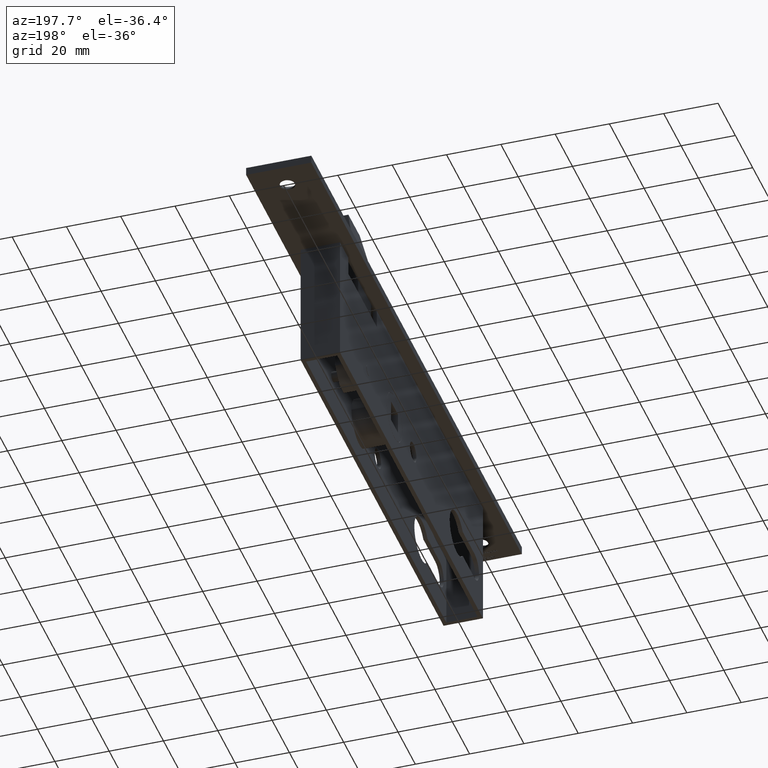
[diagram: clean part render]
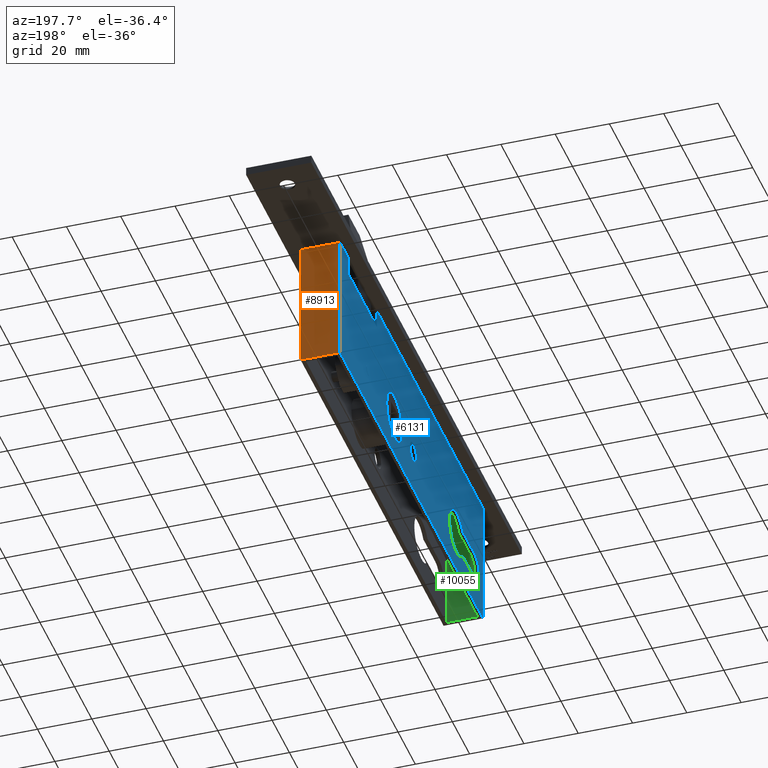
[diagram: same view with three faces highlighted in distinct colors, each labeled with its STEP entity id]
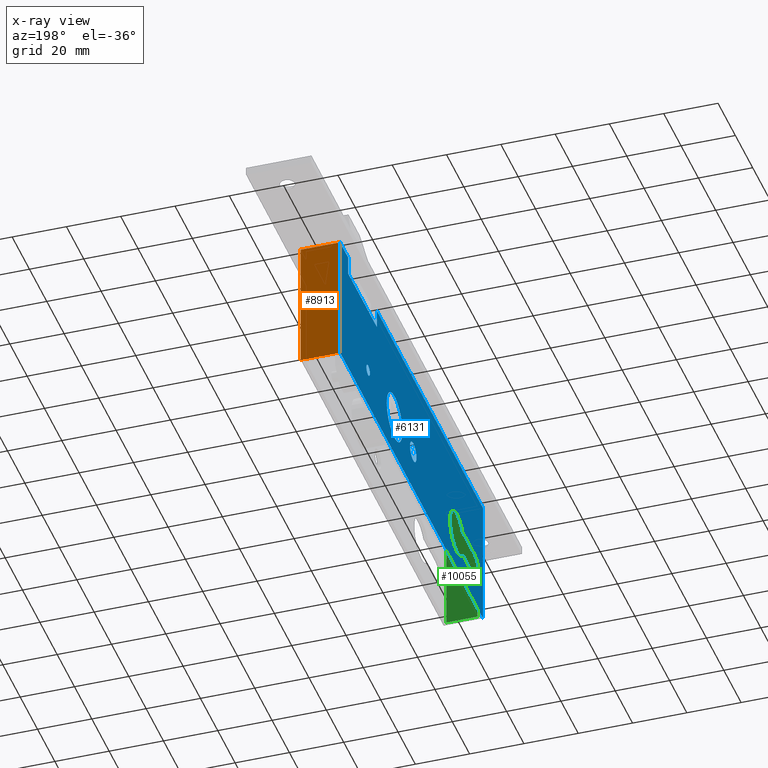
[diagram: x-ray of the same camera — body ghosted, the three highlighted faces saturated]
A machine part, auxiliary view with three faces highlighted in distinct colors.
The next image is the same camera in x-ray (body ghosted, the three faces saturated) — at least one of them is partly hidden behind the body in this view.
Their STEP definitions:

[orange] entity #8913 — the highlighted planar face has unit normal (0, -1, -0).
#209 = VECTOR ( 'NONE', #1327, 1000.000000000000000 ) ;
#993 = ORIENTED_EDGE ( 'NONE', *, *, #1352, .T. ) ;
#1008 = CARTESIAN_POINT ( 'NONE',  ( -7.249999999999977796, 195.0000000000000000, -48.00000000000000000 ) ) ;
#1106 = CARTESIAN_POINT ( 'NONE',  ( 7.249999999999977796, 195.0000000000000000, -48.00000000000000000 ) ) ;
#1327 = DIRECTION ( 'NONE',  ( 1.000000000000000000, -0.000000000000000000, -0.000000000000000000 ) ) ;
#1352 = EDGE_CURVE ( 'NONE', #2633, #5066, #12684, .T. ) ;
#1533 = PLANE ( 'NONE',  #6134 ) ;
#2045 = VECTOR ( 'NONE', #4720, 1000.000000000000000 ) ;
#2421 = DIRECTION ( 'NONE',  ( 0.000000000000000000, -1.000000000000000000, -0.000000000000000000 ) ) ;
#2492 = CARTESIAN_POINT ( 'NONE',  ( 7.249999999999977796, 195.0000000000000000, 0.000000000000000000 ) ) ;
#2633 = VERTEX_POINT ( 'NONE', #1008 ) ;
#2656 = CARTESIAN_POINT ( 'NONE',  ( 7.249999999999977796, 195.0000000000000000, -48.00000000000000000 ) ) ;
#2745 = VERTEX_POINT ( 'NONE', #2492 ) ;
#3088 = VECTOR ( 'NONE', #7062, 1000.000000000000000 ) ;
#3378 = EDGE_CURVE ( 'NONE', #12129, #2745, #8936, .T. ) ;
#4008 = EDGE_LOOP ( 'NONE', ( #9693, #10794, #6084, #993 ) ) ;
#4720 = DIRECTION ( 'NONE',  ( -0.000000000000000000, -0.000000000000000000, 1.000000000000000000 ) ) ;
#5066 = VERTEX_POINT ( 'NONE', #6665 ) ;
#5461 = CARTESIAN_POINT ( 'NONE',  ( 7.249999999999977796, 195.0000000000000000, -48.00000000000000000 ) ) ;
#5710 = CARTESIAN_POINT ( 'NONE',  ( -7.249999999999977796, 195.0000000000000000, -48.00000000000000000 ) ) ;
#6084 = ORIENTED_EDGE ( 'NONE', *, *, #11034, .F. ) ;
#6134 = AXIS2_PLACEMENT_3D ( 'NONE', #8393, #2421, #8352 ) ;
#6458 = CARTESIAN_POINT ( 'NONE',  ( 7.249999999999977796, 195.0000000000000000, 0.000000000000000000 ) ) ;
#6665 = CARTESIAN_POINT ( 'NONE',  ( -7.249999999999977796, 195.0000000000000000, 0.000000000000000000 ) ) ;
#7062 = DIRECTION ( 'NONE',  ( -0.000000000000000000, -0.000000000000000000, 1.000000000000000000 ) ) ;
#8352 = DIRECTION ( 'NONE',  ( 0.000000000000000000, 0.000000000000000000, -1.000000000000000000 ) ) ;
#8393 = CARTESIAN_POINT ( 'NONE',  ( 7.249999999999977796, 195.0000000000000000, -48.00000000000000000 ) ) ;
#8843 = VECTOR ( 'NONE', #11400, 1000.000000000000000 ) ;
#8913 = ADVANCED_FACE ( 'NONE', ( #12414 ), #1533, .F. ) ;
#8936 = LINE ( 'NONE', #1106, #3088 ) ;
#9693 = ORIENTED_EDGE ( 'NONE', *, *, #10229, .T. ) ;
#10229 = EDGE_CURVE ( 'NONE', #5066, #2745, #11326, .T. ) ;
#10794 = ORIENTED_EDGE ( 'NONE', *, *, #3378, .F. ) ;
#10839 = LINE ( 'NONE', #5461, #8843 ) ;
#11034 = EDGE_CURVE ( 'NONE', #2633, #12129, #10839, .T. ) ;
#11326 = LINE ( 'NONE', #6458, #209 ) ;
#11400 = DIRECTION ( 'NONE',  ( 1.000000000000000000, -0.000000000000000000, -0.000000000000000000 ) ) ;
#12129 = VERTEX_POINT ( 'NONE', #2656 ) ;
#12414 = FACE_OUTER_BOUND ( 'NONE', #4008, .T. ) ;
#12684 = LINE ( 'NONE', #5710, #2045 ) ;

[blue] entity #6131 — the highlighted planar face has unit normal (1, -0, 0).
#44 = AXIS2_PLACEMENT_3D ( 'NONE', #3935, #6949, #1074 ) ;
#64 = AXIS2_PLACEMENT_3D ( 'NONE', #8607, #4567, #9596 ) ;
#204 = EDGE_CURVE ( 'NONE', #6002, #9366, #8991, .T. ) ;
#246 = CARTESIAN_POINT ( 'NONE',  ( -7.249999999999977796, 195.0000000000000000, -37.25000000000000711 ) ) ;
#266 = CARTESIAN_POINT ( 'NONE',  ( -7.249999999999977796, 195.0000000000000000, -48.00000000000000000 ) ) ;
#325 = VERTEX_POINT ( 'NONE', #6034 ) ;
#374 = VECTOR ( 'NONE', #3079, 1000.000000000000000 ) ;
#461 = LINE ( 'NONE', #10387, #1095 ) ;
#644 = DIRECTION ( 'NONE',  ( 2.344220913482175107E-16, 1.000000000000000000, 0.000000000000000000 ) ) ;
#757 = ORIENTED_EDGE ( 'NONE', *, *, #12585, .T. ) ;
#913 = CIRCLE ( 'NONE', #4629, 8.499999999999992895 ) ;
#984 = EDGE_CURVE ( 'NONE', #3305, #9804, #11756, .T. ) ;
#1002 = ORIENTED_EDGE ( 'NONE', *, *, #6358, .T. ) ;
#1008 = CARTESIAN_POINT ( 'NONE',  ( -7.249999999999977796, 195.0000000000000000, -48.00000000000000000 ) ) ;
#1031 = ORIENTED_EDGE ( 'NONE', *, *, #1352, .F. ) ;
#1074 = DIRECTION ( 'NONE',  ( 1.652117596168386277E-16, 1.000000000000000000, 0.000000000000000000 ) ) ;
#1095 = VECTOR ( 'NONE', #5574, 1000.000000000000000 ) ;
#1211 = VERTEX_POINT ( 'NONE', #8776 ) ;
#1244 = LINE ( 'NONE', #1548, #11411 ) ;
#1352 = EDGE_CURVE ( 'NONE', #2633, #5066, #12684, .T. ) ;
#1548 = CARTESIAN_POINT ( 'NONE',  ( -7.249999999999977796, 195.0000000000000000, 0.000000000000000000 ) ) ;
#1610 = EDGE_CURVE ( 'NONE', #9804, #6669, #10043, .T. ) ;
#1655 = ORIENTED_EDGE ( 'NONE', *, *, #3767, .T. ) ;
#1658 = EDGE_LOOP ( 'NONE', ( #757, #7565, #6142, #7255 ) ) ;
#1751 = DIRECTION ( 'NONE',  ( 1.419319207617387533E-16, 1.000000000000000000, -0.000000000000000000 ) ) ;
#1975 = DIRECTION ( 'NONE',  ( 1.020425574104004985E-16, 1.000000000000000000, 0.000000000000000000 ) ) ;
#2020 = EDGE_CURVE ( 'NONE', #4118, #1211, #8042, .T. ) ;
#2045 = VECTOR ( 'NONE', #4720, 1000.000000000000000 ) ;
#2089 = VERTEX_POINT ( 'NONE', #5878 ) ;
#2201 = AXIS2_PLACEMENT_3D ( 'NONE', #3121, #6136, #5053 ) ;
#2405 = EDGE_CURVE ( 'NONE', #9366, #8727, #461, .T. ) ;
#2459 = CARTESIAN_POINT ( 'NONE',  ( -7.249999999999998224, 39.75000000000000000, -26.74999999999999645 ) ) ;
#2555 = EDGE_LOOP ( 'NONE', ( #3568 ) ) ;
#2633 = VERTEX_POINT ( 'NONE', #1008 ) ;
#2792 = CARTESIAN_POINT ( 'NONE',  ( -7.250000000000000888, 30.00000000000000355, -48.00000000000000000 ) ) ;
#2875 = LINE ( 'NONE', #246, #374 ) ;
#3079 = DIRECTION ( 'NONE',  ( 1.419319207617387533E-16, 1.000000000000000000, 0.000000000000000000 ) ) ;
#3082 = VECTOR ( 'NONE', #7830, 1000.000000000000000 ) ;
#3121 = CARTESIAN_POINT ( 'NONE',  ( -7.249999999999986677, 132.0000000000000000, -31.99999999999998579 ) ) ;
#3141 = ORIENTED_EDGE ( 'NONE', *, *, #8087, .F. ) ;
#3220 = CARTESIAN_POINT ( 'NONE',  ( -7.249999999999977796, 195.0000000000000000, 0.000000000000000000 ) ) ;
#3277 = DIRECTION ( 'NONE',  ( 1.419319207617387533E-16, 1.000000000000000000, -0.000000000000000000 ) ) ;
#3305 = VERTEX_POINT ( 'NONE', #2792 ) ;
#3308 = VECTOR ( 'NONE', #12410, 1000.000000000000000 ) ;
#3377 = FACE_BOUND ( 'NONE', #7053, .T. ) ;
#3567 = EDGE_CURVE ( 'NONE', #2089, #325, #913, .T. ) ;
#3568 = ORIENTED_EDGE ( 'NONE', *, *, #11137, .T. ) ;
#3621 = PLANE ( 'NONE',  #64 ) ;
#3767 = EDGE_CURVE ( 'NONE', #8727, #5066, #1244, .T. ) ;
#3823 = AXIS2_PLACEMENT_3D ( 'NONE', #7611, #9553, #6623 ) ;
#3935 = CARTESIAN_POINT ( 'NONE',  ( -7.249999999999999112, 39.75000000000000000, -32.00000000000000000 ) ) ;
#3978 = FACE_BOUND ( 'NONE', #2555, .T. ) ;
#4118 = VERTEX_POINT ( 'NONE', #2459 ) ;
#4314 = CIRCLE ( 'NONE', #2201, 9.000000000000007105 ) ;
#4328 = ORIENTED_EDGE ( 'NONE', *, *, #984, .T. ) ;
#4567 = DIRECTION ( 'NONE',  ( 1.000000000000000000, -1.419319207617387533E-16, 0.000000000000000000 ) ) ;
#4629 = AXIS2_PLACEMENT_3D ( 'NONE', #9882, #9796, #1975 ) ;
#4720 = DIRECTION ( 'NONE',  ( -0.000000000000000000, -0.000000000000000000, 1.000000000000000000 ) ) ;
#4833 = EDGE_LOOP ( 'NONE', ( #7325 ) ) ;
#4866 = LINE ( 'NONE', #266, #10554 ) ;
#4921 = CIRCLE ( 'NONE', #3823, 2.000000000000001776 ) ;
#5053 = DIRECTION ( 'NONE',  ( 9.637352644315587847E-17, 1.000000000000000000, 0.000000000000000000 ) ) ;
#5066 = VERTEX_POINT ( 'NONE', #6665 ) ;
#5439 = EDGE_CURVE ( 'NONE', #6669, #6002, #6752, .T. ) ;
#5547 = CARTESIAN_POINT ( 'NONE',  ( -7.249999999999977796, 195.0000000000000000, -26.74999999999999645 ) ) ;
#5560 = DIRECTION ( 'NONE',  ( -0.000000000000000000, -0.000000000000000000, 1.000000000000000000 ) ) ;
#5574 = DIRECTION ( 'NONE',  ( 0.000000000000000000, 0.000000000000000000, 1.000000000000000000 ) ) ;
#5710 = CARTESIAN_POINT ( 'NONE',  ( -7.249999999999977796, 195.0000000000000000, -48.00000000000000000 ) ) ;
#5774 = ORIENTED_EDGE ( 'NONE', *, *, #204, .T. ) ;
#5878 = CARTESIAN_POINT ( 'NONE',  ( -7.249999999999997335, 53.31512902143953170, -37.25000000000000711 ) ) ;
#6002 = VERTEX_POINT ( 'NONE', #6667 ) ;
#6027 = CARTESIAN_POINT ( 'NONE',  ( -7.249999999999984013, 152.5000000000000000, 0.000000000000000000 ) ) ;
#6034 = CARTESIAN_POINT ( 'NONE',  ( -7.249999999999996447, 53.31512902143953170, -26.74999999999999645 ) ) ;
#6131 = ADVANCED_FACE ( 'NONE', ( #3978, #8146, #12469, #3377, #11373 ), #3621, .F. ) ;
#6136 = DIRECTION ( 'NONE',  ( 1.000000000000000000, -1.419319207617387533E-16, 0.000000000000000000 ) ) ;
#6142 = ORIENTED_EDGE ( 'NONE', *, *, #9613, .T. ) ;
#6221 = VECTOR ( 'NONE', #5560, 1000.000000000000000 ) ;
#6358 = EDGE_CURVE ( 'NONE', #9678, #9678, #6889, .T. ) ;
#6407 = CARTESIAN_POINT ( 'NONE',  ( -7.249999999999990230, 110.5000000000000142, -31.99999999999998579 ) ) ;
#6476 = CARTESIAN_POINT ( 'NONE',  ( -7.250000000000000888, 30.00000000000000355, -0.000000000000000000 ) ) ;
#6623 = DIRECTION ( 'NONE',  ( 0.000000000000000000, 1.000000000000000000, 0.000000000000000000 ) ) ;
#6665 = CARTESIAN_POINT ( 'NONE',  ( -7.249999999999977796, 195.0000000000000000, 0.000000000000000000 ) ) ;
#6667 = CARTESIAN_POINT ( 'NONE',  ( -7.250000000000001776, 152.5000000000000000, -7.000000000000004441 ) ) ;
#6669 = VERTEX_POINT ( 'NONE', #6027 ) ;
#6670 = EDGE_LOOP ( 'NONE', ( #10049, #1655, #1031, #3141, #4328, #10956, #11576, #5774 ) ) ;
#6752 = LINE ( 'NONE', #7031, #9986 ) ;
#6763 = CARTESIAN_POINT ( 'NONE',  ( -7.249999999999985789, 141.0000000000000000, -31.99999999999998579 ) ) ;
#6863 = DIRECTION ( 'NONE',  ( 0.000000000000000000, -0.000000000000000000, -1.000000000000000000 ) ) ;
#6889 = CIRCLE ( 'NONE', #11140, 3.699999999999994849 ) ;
#6949 = DIRECTION ( 'NONE',  ( 1.000000000000000000, -1.419319207617387533E-16, 0.000000000000000000 ) ) ;
#7031 = CARTESIAN_POINT ( 'NONE',  ( -7.250000000000001776, 152.5000000000000000, -7.000000000000004441 ) ) ;
#7053 = EDGE_LOOP ( 'NONE', ( #1002 ) ) ;
#7255 = ORIENTED_EDGE ( 'NONE', *, *, #3567, .T. ) ;
#7325 = ORIENTED_EDGE ( 'NONE', *, *, #11859, .T. ) ;
#7565 = ORIENTED_EDGE ( 'NONE', *, *, #2020, .T. ) ;
#7611 = CARTESIAN_POINT ( 'NONE',  ( -7.250000000000001776, 162.5500000000000114, -33.00000000000000000 ) ) ;
#7830 = DIRECTION ( 'NONE',  ( -1.419319207617387533E-16, -1.000000000000000000, 0.000000000000000000 ) ) ;
#8042 = CIRCLE ( 'NONE', #44, 5.250000000000004441 ) ;
#8087 = EDGE_CURVE ( 'NONE', #3305, #2633, #4866, .T. ) ;
#8146 = FACE_BOUND ( 'NONE', #1658, .T. ) ;
#8550 = CARTESIAN_POINT ( 'NONE',  ( -7.250000000000001776, 185.5000000000000000, -7.000000000000000000 ) ) ;
#8607 = CARTESIAN_POINT ( 'NONE',  ( -7.249999999999977796, 195.0000000000000000, -48.00000000000000000 ) ) ;
#8727 = VERTEX_POINT ( 'NONE', #10112 ) ;
#8776 = CARTESIAN_POINT ( 'NONE',  ( -7.249999999999998224, 39.75000000000000000, -37.25000000000000711 ) ) ;
#8991 = LINE ( 'NONE', #11362, #3308 ) ;
#9366 = VERTEX_POINT ( 'NONE', #8550 ) ;
#9542 = VERTEX_POINT ( 'NONE', #11755 ) ;
#9553 = DIRECTION ( 'NONE',  ( 1.000000000000000000, -1.051347561198064896E-17, -0.000000000000000000 ) ) ;
#9596 = DIRECTION ( 'NONE',  ( 1.419319207617387533E-16, 1.000000000000000000, 0.000000000000000000 ) ) ;
#9613 = EDGE_CURVE ( 'NONE', #1211, #2089, #2875, .T. ) ;
#9678 = VERTEX_POINT ( 'NONE', #10267 ) ;
#9796 = DIRECTION ( 'NONE',  ( 1.000000000000000000, -1.419319207617387533E-16, 0.000000000000000000 ) ) ;
#9804 = VERTEX_POINT ( 'NONE', #6476 ) ;
#9882 = CARTESIAN_POINT ( 'NONE',  ( -7.249999999999997335, 60.00000000000000000, -32.00000000000000000 ) ) ;
#9986 = VECTOR ( 'NONE', #6863, 1000.000000000000000 ) ;
#10000 = LINE ( 'NONE', #5547, #3082 ) ;
#10043 = LINE ( 'NONE', #3220, #12066 ) ;
#10049 = ORIENTED_EDGE ( 'NONE', *, *, #2405, .T. ) ;
#10093 = DIRECTION ( 'NONE',  ( 1.419319207617387533E-16, 1.000000000000000000, -0.000000000000000000 ) ) ;
#10112 = CARTESIAN_POINT ( 'NONE',  ( -7.250000000000001776, 185.5000000000000000, 0.000000000000000000 ) ) ;
#10267 = CARTESIAN_POINT ( 'NONE',  ( -7.249999999999989342, 114.2000000000000028, -31.99999999999998579 ) ) ;
#10387 = CARTESIAN_POINT ( 'NONE',  ( -7.250000000000001776, 185.5000000000000000, 0.000000000000000000 ) ) ;
#10543 = CARTESIAN_POINT ( 'NONE',  ( -7.250000000000000888, 30.00000000000000355, -48.00000000000000000 ) ) ;
#10554 = VECTOR ( 'NONE', #3277, 1000.000000000000000 ) ;
#10956 = ORIENTED_EDGE ( 'NONE', *, *, #1610, .T. ) ;
#11137 = EDGE_CURVE ( 'NONE', #9542, #9542, #4921, .T. ) ;
#11140 = AXIS2_PLACEMENT_3D ( 'NONE', #6407, #12389, #644 ) ;
#11362 = CARTESIAN_POINT ( 'NONE',  ( -7.250000000000001776, 185.5000000000000000, -7.000000000000000000 ) ) ;
#11373 = FACE_OUTER_BOUND ( 'NONE', #6670, .T. ) ;
#11411 = VECTOR ( 'NONE', #1751, 1000.000000000000000 ) ;
#11576 = ORIENTED_EDGE ( 'NONE', *, *, #5439, .T. ) ;
#11755 = CARTESIAN_POINT ( 'NONE',  ( -7.250000000000001776, 164.5500000000000114, -33.00000000000000000 ) ) ;
#11756 = LINE ( 'NONE', #10543, #6221 ) ;
#11859 = EDGE_CURVE ( 'NONE', #12789, #12789, #4314, .T. ) ;
#12066 = VECTOR ( 'NONE', #10093, 1000.000000000000000 ) ;
#12389 = DIRECTION ( 'NONE',  ( 1.000000000000000000, -1.419319207617387533E-16, 0.000000000000000000 ) ) ;
#12410 = DIRECTION ( 'NONE',  ( 0.000000000000000000, 1.000000000000000000, 1.314184451497581013E-16 ) ) ;
#12469 = FACE_BOUND ( 'NONE', #4833, .T. ) ;
#12585 = EDGE_CURVE ( 'NONE', #325, #4118, #10000, .T. ) ;
#12684 = LINE ( 'NONE', #5710, #2045 ) ;
#12789 = VERTEX_POINT ( 'NONE', #6763 ) ;

[green] entity #10055 — the highlighted planar face has unit normal (-0, 1, 0).
#673 = CARTESIAN_POINT ( 'NONE',  ( 5.749999999999999112, 31.50000000000000000, -48.00000000000000000 ) ) ;
#1051 = EDGE_CURVE ( 'NONE', #1502, #1710, #8977, .T. ) ;
#1105 = VECTOR ( 'NONE', #6592, 1000.000000000000000 ) ;
#1502 = VERTEX_POINT ( 'NONE', #673 ) ;
#1710 = VERTEX_POINT ( 'NONE', #8212 ) ;
#2067 = CARTESIAN_POINT ( 'NONE',  ( -5.749999999999999112, 31.50000000000000000, -48.00000000000000000 ) ) ;
#2077 = CARTESIAN_POINT ( 'NONE',  ( -5.749999999999999112, 31.50000000000000000, -48.00000000000000000 ) ) ;
#2867 = DIRECTION ( 'NONE',  ( -0.000000000000000000, -0.000000000000000000, 1.000000000000000000 ) ) ;
#2929 = EDGE_CURVE ( 'NONE', #1502, #6798, #12214, .T. ) ;
#2978 = DIRECTION ( 'NONE',  ( -0.000000000000000000, 1.000000000000000000, 0.000000000000000000 ) ) ;
#3004 = DIRECTION ( 'NONE',  ( -0.000000000000000000, -0.000000000000000000, 1.000000000000000000 ) ) ;
#3506 = EDGE_LOOP ( 'NONE', ( #8314, #9134, #11648, #6077 ) ) ;
#3890 = CARTESIAN_POINT ( 'NONE',  ( -5.749999999999999112, 31.50000000000000000, 0.000000000000000000 ) ) ;
#4892 = VECTOR ( 'NONE', #3004, 1000.000000000000000 ) ;
#4916 = DIRECTION ( 'NONE',  ( 0.000000000000000000, -0.000000000000000000, 1.000000000000000000 ) ) ;
#5660 = EDGE_CURVE ( 'NONE', #6798, #10290, #10151, .T. ) ;
#6077 = ORIENTED_EDGE ( 'NONE', *, *, #6656, .T. ) ;
#6137 = LINE ( 'NONE', #2067, #4892 ) ;
#6592 = DIRECTION ( 'NONE',  ( -1.000000000000000000, -0.000000000000000000, -0.000000000000000000 ) ) ;
#6656 = EDGE_CURVE ( 'NONE', #1710, #10290, #6137, .T. ) ;
#6708 = FACE_OUTER_BOUND ( 'NONE', #3506, .T. ) ;
#6793 = VECTOR ( 'NONE', #2867, 1000.000000000000000 ) ;
#6798 = VERTEX_POINT ( 'NONE', #9161 ) ;
#7535 = VECTOR ( 'NONE', #9819, 1000.000000000000000 ) ;
#8212 = CARTESIAN_POINT ( 'NONE',  ( -5.749999999999999112, 31.50000000000000000, -48.00000000000000000 ) ) ;
#8314 = ORIENTED_EDGE ( 'NONE', *, *, #5660, .F. ) ;
#8977 = LINE ( 'NONE', #12507, #1105 ) ;
#9134 = ORIENTED_EDGE ( 'NONE', *, *, #2929, .F. ) ;
#9161 = CARTESIAN_POINT ( 'NONE',  ( 5.749999999999999112, 31.50000000000000000, 0.000000000000000000 ) ) ;
#9389 = CARTESIAN_POINT ( 'NONE',  ( -5.749999999999999112, 31.50000000000000000, 0.000000000000000000 ) ) ;
#9819 = DIRECTION ( 'NONE',  ( -1.000000000000000000, -0.000000000000000000, -0.000000000000000000 ) ) ;
#9858 = PLANE ( 'NONE',  #10252 ) ;
#10055 = ADVANCED_FACE ( 'NONE', ( #6708 ), #9858, .T. ) ;
#10151 = LINE ( 'NONE', #3890, #7535 ) ;
#10252 = AXIS2_PLACEMENT_3D ( 'NONE', #2077, #2978, #4916 ) ;
#10290 = VERTEX_POINT ( 'NONE', #9389 ) ;
#11648 = ORIENTED_EDGE ( 'NONE', *, *, #1051, .T. ) ;
#12214 = LINE ( 'NONE', #12774, #6793 ) ;
#12507 = CARTESIAN_POINT ( 'NONE',  ( -5.749999999999999112, 31.50000000000000000, -48.00000000000000000 ) ) ;
#12774 = CARTESIAN_POINT ( 'NONE',  ( 5.749999999999999112, 31.50000000000000000, -48.00000000000000000 ) ) ;